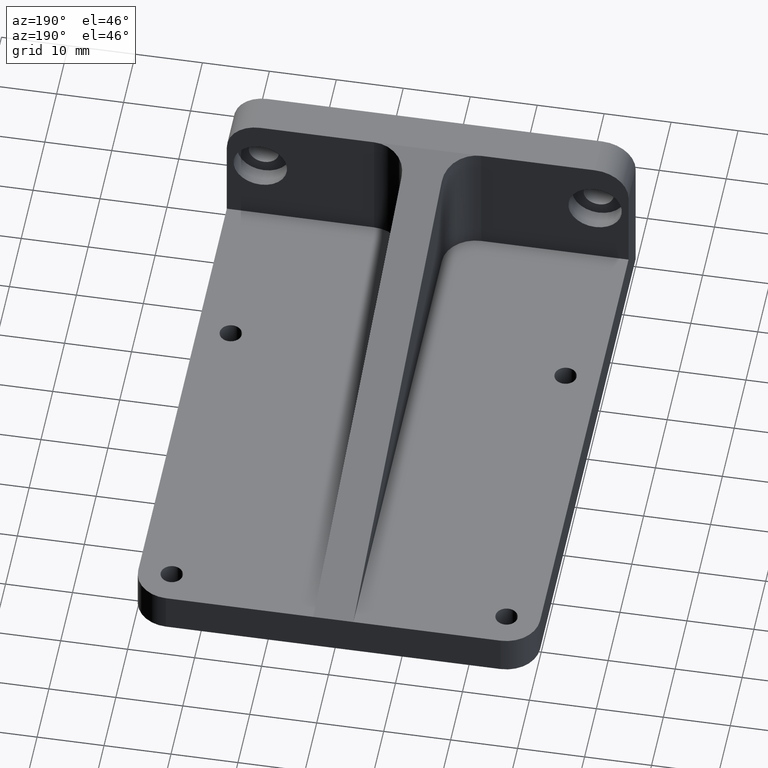
[diagram: clean part render]
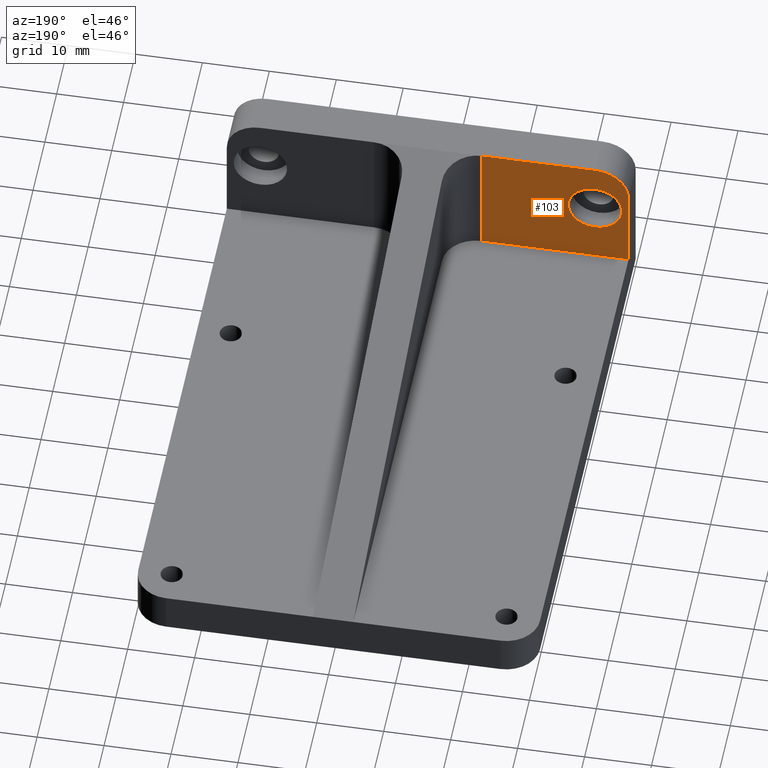
[diagram: same view with one face highlighted and labeled with its STEP entity id]
A machine part, auxiliary view. The second image highlights one B-rep face of the part: STEP entity #103.
In plain terms, the highlighted planar face has unit normal (0, -1, 0).
Its self-contained STEP definition (entity closure, byte-faithful):
#6 = VERTEX_POINT ( 'NONE', #70 ) ;
#14 = FACE_BOUND ( 'NONE', #723, .T. ) ;
#33 = CARTESIAN_POINT ( 'NONE',  ( -24.99999999999999289, 5.999999999999996447, 19.00000000000000000 ) ) ;
#65 = VERTEX_POINT ( 'NONE', #512 ) ;
#70 = CARTESIAN_POINT ( 'NONE',  ( -30.00000000000000000, 5.999999999999996447, 6.000000000000005329 ) ) ;
#81 = LINE ( 'NONE', #1229, #356 ) ;
#86 = EDGE_CURVE ( 'NONE', #6, #412, #1060, .T. ) ;
#87 = PLANE ( 'NONE',  #1106 ) ;
#99 = DIRECTION ( 'NONE',  ( 0.0000000000000000000, -1.000000000000000000, 0.0000000000000000000 ) ) ;
#103 = ADVANCED_FACE ( 'NONE', ( #213, #14 ), #87, .F. ) ;
#124 = CARTESIAN_POINT ( 'NONE',  ( -30.00000000000000000, 5.999999999999996447, 19.00000000000000355 ) ) ;
#159 = DIRECTION ( 'NONE',  ( 1.000000000000000000, 0.0000000000000000000, 0.0000000000000000000 ) ) ;
#192 = DIRECTION ( 'NONE',  ( -0.0000000000000000000, -0.0000000000000000000, 1.000000000000000000 ) ) ;
#213 = FACE_OUTER_BOUND ( 'NONE', #1038, .T. ) ;
#250 = LINE ( 'NONE', #1224, #886 ) ;
#253 = ORIENTED_EDGE ( 'NONE', *, *, #587, .F. ) ;
#301 = AXIS2_PLACEMENT_3D ( 'NONE', #33, #432, #1165 ) ;
#305 = DIRECTION ( 'NONE',  ( -0.0000000000000000000, 1.000000000000000000, -0.0000000000000000000 ) ) ;
#356 = VECTOR ( 'NONE', #373, 1000.000000000000000 ) ;
#365 = CARTESIAN_POINT ( 'NONE',  ( -7.999999999999992895, 5.999999999999996447, 24.00000000000000000 ) ) ;
#368 = ORIENTED_EDGE ( 'NONE', *, *, #1070, .T. ) ;
#373 = DIRECTION ( 'NONE',  ( -1.000000000000000000, 0.0000000000000000000, 0.0000000000000000000 ) ) ;
#398 = CARTESIAN_POINT ( 'NONE',  ( -30.00000000000000000, 5.999999999999996447, -84.43340571124680594 ) ) ;
#403 = CARTESIAN_POINT ( 'NONE',  ( -7.999999999999991118, 5.999999999999996447, 6.000000000000005329 ) ) ;
#412 = VERTEX_POINT ( 'NONE', #124 ) ;
#432 = DIRECTION ( 'NONE',  ( -0.0000000000000000000, 1.000000000000000000, -0.0000000000000000000 ) ) ;
#439 = ORIENTED_EDGE ( 'NONE', *, *, #1010, .T. ) ;
#447 = AXIS2_PLACEMENT_3D ( 'NONE', #590, #305, #852 ) ;
#476 = LINE ( 'NONE', #403, #741 ) ;
#512 = CARTESIAN_POINT ( 'NONE',  ( -24.99999999999999645, 5.999999999999998224, 12.00000000000000000 ) ) ;
#564 = CARTESIAN_POINT ( 'NONE',  ( -24.99999999999999289, 5.999999999999996447, 24.00000000000000000 ) ) ;
#581 = ORIENTED_EDGE ( 'NONE', *, *, #783, .F. ) ;
#587 = EDGE_CURVE ( 'NONE', #65, #1232, #924, .T. ) ;
#590 = CARTESIAN_POINT ( 'NONE',  ( -24.99999999999999645, 5.999999999999998224, 16.00000000000000000 ) ) ;
#609 = ORIENTED_EDGE ( 'NONE', *, *, #1187, .T. ) ;
#656 = ORIENTED_EDGE ( 'NONE', *, *, #86, .T. ) ;
#677 = DIRECTION ( 'NONE',  ( 0.0000000000000000000, -0.0000000000000000000, -1.000000000000000000 ) ) ;
#696 = CIRCLE ( 'NONE', #447, 4.000000000000000000 ) ;
#708 = VERTEX_POINT ( 'NONE', #365 ) ;
#710 = VECTOR ( 'NONE', #192, 1000.000000000000000 ) ;
#711 = AXIS2_PLACEMENT_3D ( 'NONE', #738, #929, #1117 ) ;
#714 = CARTESIAN_POINT ( 'NONE',  ( -7.999999999999992895, 5.999999999999996447, 6.000000000000005329 ) ) ;
#723 = EDGE_LOOP ( 'NONE', ( #581, #253 ) ) ;
#738 = CARTESIAN_POINT ( 'NONE',  ( -24.99999999999999645, 5.999999999999998224, 16.00000000000000000 ) ) ;
#741 = VECTOR ( 'NONE', #780, 1000.000000000000000 ) ;
#763 = CARTESIAN_POINT ( 'NONE',  ( -30.00000000000000000, 5.999999999999996447, -84.43340571124680594 ) ) ;
#780 = DIRECTION ( 'NONE',  ( -0.0000000000000000000, -0.0000000000000000000, -1.000000000000000000 ) ) ;
#783 = EDGE_CURVE ( 'NONE', #1232, #65, #696, .T. ) ;
#852 = DIRECTION ( 'NONE',  ( 0.0000000000000000000, 0.0000000000000000000, 1.000000000000000000 ) ) ;
#886 = VECTOR ( 'NONE', #159, 1000.000000000000000 ) ;
#890 = EDGE_CURVE ( 'NONE', #980, #6, #81, .T. ) ;
#924 = CIRCLE ( 'NONE', #711, 4.000000000000000000 ) ;
#929 = DIRECTION ( 'NONE',  ( -0.0000000000000000000, 1.000000000000000000, -0.0000000000000000000 ) ) ;
#971 = ORIENTED_EDGE ( 'NONE', *, *, #890, .T. ) ;
#980 = VERTEX_POINT ( 'NONE', #714 ) ;
#1010 = EDGE_CURVE ( 'NONE', #1202, #708, #250, .T. ) ;
#1038 = EDGE_LOOP ( 'NONE', ( #656, #368, #439, #609, #971 ) ) ;
#1060 = LINE ( 'NONE', #763, #710 ) ;
#1070 = EDGE_CURVE ( 'NONE', #412, #1202, #1218, .T. ) ;
#1106 = AXIS2_PLACEMENT_3D ( 'NONE', #398, #99, #677 ) ;
#1117 = DIRECTION ( 'NONE',  ( 0.0000000000000000000, 0.0000000000000000000, 1.000000000000000000 ) ) ;
#1165 = DIRECTION ( 'NONE',  ( 2.081668171172168119E-15, 0.0000000000000000000, -1.000000000000000000 ) ) ;
#1187 = EDGE_CURVE ( 'NONE', #708, #980, #476, .T. ) ;
#1202 = VERTEX_POINT ( 'NONE', #564 ) ;
#1218 = CIRCLE ( 'NONE', #301, 5.000000000000000888 ) ;
#1220 = CARTESIAN_POINT ( 'NONE',  ( -24.99999999999999645, 5.999999999999998224, 20.00000000000000000 ) ) ;
#1224 = CARTESIAN_POINT ( 'NONE',  ( -30.00000000000000000, 5.999999999999996447, 24.00000000000000000 ) ) ;
#1229 = CARTESIAN_POINT ( 'NONE',  ( -30.00000000000000000, 5.999999999999996447, 6.000000000000005329 ) ) ;
#1232 = VERTEX_POINT ( 'NONE', #1220 ) ;